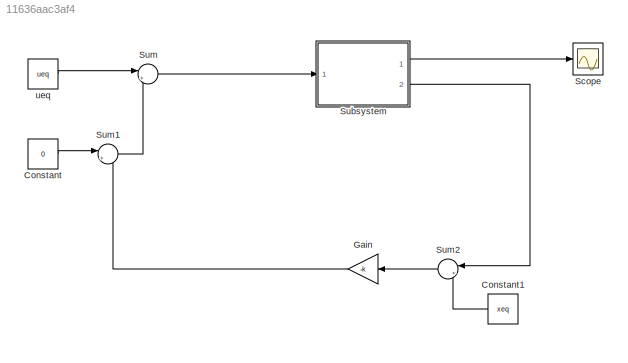
MODEL slx_11636aac3af4
KIND model
CONFIG AbsTol = auto
CONFIG EnableMultiTasking = off
CONFIG FixedStep = auto
CONFIG MaxStep = auto
CONFIG MinStep = auto
CONFIG RelTol = 1e-3
CONFIG SampleTimeConstraint = Unconstrained
CONFIG Solver = VariableStepAuto
CONFIG SolverName = VariableStepAuto
CONFIG StartTime = 0.0
CONFIG StopTime = 5
BLOCK [Constant] Constant
  Value = 0
BLOCK [Constant] Constant1
  Value = xeq
BLOCK [Gain] Gain
  Gain = -k
  Multiplication = Matrix(K*u)
  OutDataTypeStr = Inherit: Inherit via internal rule
  ParamDataTypeStr = Inherit: Inherit via internal rule
  SaturateOnIntegerOverflow = off
BLOCK [Scope] Scope
  Floating = off
  NumInputPorts = 1
  Ports = [1]
  ScopeSpecificationString = Simulink.scopes.TimeScopeBlockCfg('CurrentConfiguration', extmgr.ConfigurationSet(extmgr.Configuration('Core','General UI',true),extmgr.Configuration('Core','Source UI',true),extmgr.Configuration('Sources','WiredSimulink',true),extmgr.Configuration('Visuals','Time Domain',true),extmgr.Configuration('Tools','Plot Navigation',true),extmgr.Configuration('Tools','Measurements',true)),'Version','2019b'...<+1ch>
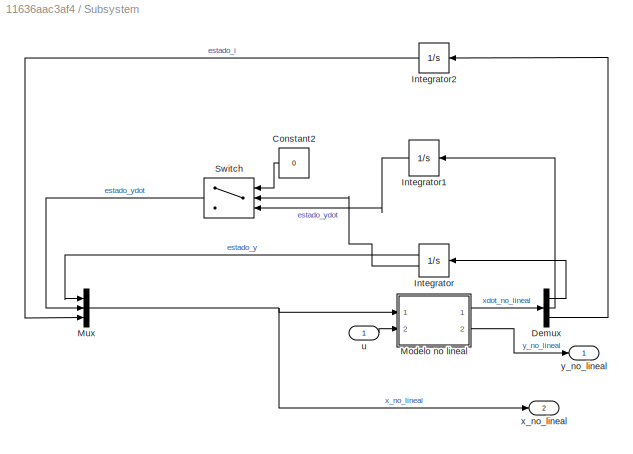
BLOCK [SubSystem] Subsystem
  Ports = [1, 2]
  RequestExecContextInheritance = off
BLOCK [Constant] Subsystem/Constant2
  Value = 0
BLOCK [Demux] Subsystem/Demux
  DisplayOption = bar
  Outputs = 3
  Ports = [1, 3]
BLOCK [Integrator] Subsystem/Integrator
  InitialCondition = 0.3
  LimitOutput = on
  LowerSaturationLimit = -0.95
  Ports = [1, 2]
  ShowSaturationPort = on
  UpperSaturationLimit = .95
BLOCK [Integrator] Subsystem/Integrator1
  InitialCondition = 0.2
  LimitOutput = on
  LowerSaturationLimit = -1e5
  Ports = [1, 1]
  UpperSaturationLimit = 1e5
BLOCK [Integrator] Subsystem/Integrator2
  InitialCondition = xeq(3)
  LimitOutput = on
  LowerSaturationLimit = -50
  Ports = [1, 1]
  UpperSaturationLimit = 50
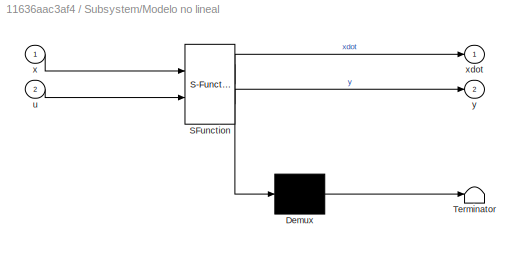
BLOCK [SubSystem] Subsystem/Modelo no lineal
  ErrorFcn = Stateflow.Translate.translate
  PermitHierarchicalResolution = ExplicitOnly
  Ports = [2, 2]
  RequestExecContextInheritance = off
  SFBlockType = MATLAB Function
  TreatAsAtomicUnit = on
BLOCK [Demux] Subsystem/Modelo no lineal/ Demux 
  Outputs = 1
  Ports = [1, 1]
BLOCK [S-Function] Subsystem/Modelo no lineal/ SFunction 
  EnableBusSupport = on
  FunctionName = sf_sfun
  PortCounts = [2 3]
  Ports = [2, 3]
  SFcnIsStateOwnerBlock = off
  SFunctionDeploymentMode = off
  Tag = Stateflow S-Function 2
BLOCK [Terminator] Subsystem/Modelo no lineal/ Terminator 
BLOCK [Inport] Subsystem/Modelo no lineal/u
  IconDisplay = Port number
  Port = 2
BLOCK [Inport] Subsystem/Modelo no lineal/x
  IconDisplay = Port number
BLOCK [Outport] Subsystem/Modelo no lineal/xdot
  IconDisplay = Port number
BLOCK [Outport] Subsystem/Modelo no lineal/y
  IconDisplay = Port number
  Port = 2
BLOCK [Mux] Subsystem/Mux
  DisplayOption = bar
  Inputs = 3
  Ports = [3, 1]
BLOCK [Switch] Subsystem/Switch
  Criteria = u2 ~= 0
  InputSameDT = off
  SaturateOnIntegerOverflow = off
BLOCK [Inport] Subsystem/u
  IconDisplay = Port number
BLOCK [Outport] Subsystem/x_no_lineal
  IconDisplay = Port number
  Port = 2
BLOCK [Outport] Subsystem/y_no_lineal
  IconDisplay = Port number
BLOCK [Sum] Sum
  IconShape = round
  InputSameDT = off
  Inputs = |++
  OutDataTypeStr = Inherit: Inherit via internal rule
  Ports = [2, 1]
  SaturateOnIntegerOverflow = off
BLOCK [Sum] Sum1
  IconShape = round
  InputSameDT = off
  Inputs = |++
  OutDataTypeStr = Inherit: Inherit via internal rule
  Ports = [2, 1]
  SaturateOnIntegerOverflow = off
BLOCK [Sum] Sum2
  IconShape = round
  InputSameDT = off
  Inputs = |+-
  OutDataTypeStr = Inherit: Inherit via internal rule
  Ports = [2, 1]
  SaturateOnIntegerOverflow = off
BLOCK [Constant] ueq
  Value = ueq
LINE Constant1:1 -> Sum2:2
LINE Constant:1 -> Sum1:1
LINE Gain:1 -> Sum1:2
LINE Subsystem/Constant2:1 -> Subsystem/Switch:1
LINE Subsystem/Demux:1 -> Subsystem/Integrator:1
LINE Subsystem/Demux:2 -> Subsystem/Integrator1:1
LINE Subsystem/Demux:3 -> Subsystem/Integrator2:1
LINE Subsystem/Integrator1:1 -> Subsystem/Switch:3
LINE Subsystem/Integrator2:1 -> Subsystem/Mux:3
LINE Subsystem/Integrator:1 -> Subsystem/Mux:1
LINE Subsystem/Integrator:2 -> Subsystem/Switch:2
LINE Subsystem/Modelo no lineal:1 -> Subsystem/Demux:1
LINE Subsystem/Modelo no lineal:2 -> Subsystem/y_no_lineal:1
NET Subsystem/Mux:1 -> Subsystem/Modelo no lineal:1, Subsystem/x_no_lineal:1
LINE Subsystem/Switch:1 -> Subsystem/Mux:2
LINE Subsystem/u:1 -> Subsystem/Modelo no lineal:2
LINE Subsystem:1 -> Scope:1
LINE Subsystem:2 -> Sum2:1
LINE Sum1:1 -> Sum:2
LINE Sum2:1 -> Gain:1
LINE Sum:1 -> Subsystem:1
LINE ueq:1 -> Sum:1
note: NET lines group one-source signal fan-out (src -> all destinations, sorted); 1:1 wires keep LINE
CHART Subsystem/Modelo no lineal states=1 transitions=1
  STATE_LABEL 'eML_blk_kernel()'
  STATE_LABEL 'SCRIPT:\nfunction [xdot,y] = nolineal(x, u)\n    xdot1 = x(2);\n    xdot2 = (5*(x(3) + 2)^2)/(2*(x(1) - 1)^2) - (5*(x(3)  - 2)^2)/(2*(x(1) + 1)^2) - 10; \n    xdot3 = - 4*x(3)^2 + u;\n\n    xdot = [xdot1; xdot2; xdot3];\n    y = x(1);\nend\n\n'
